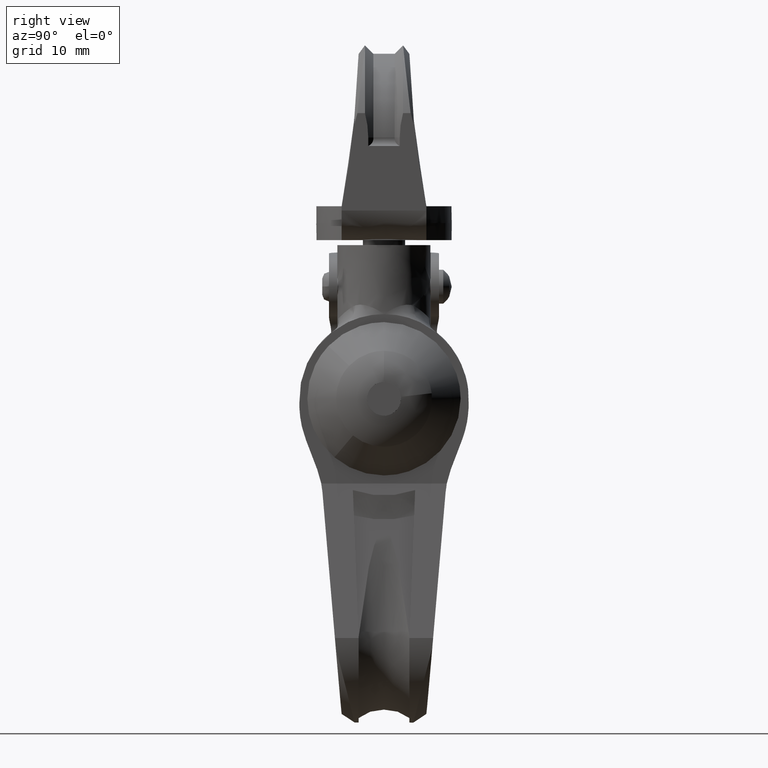
[diagram: clean part render]
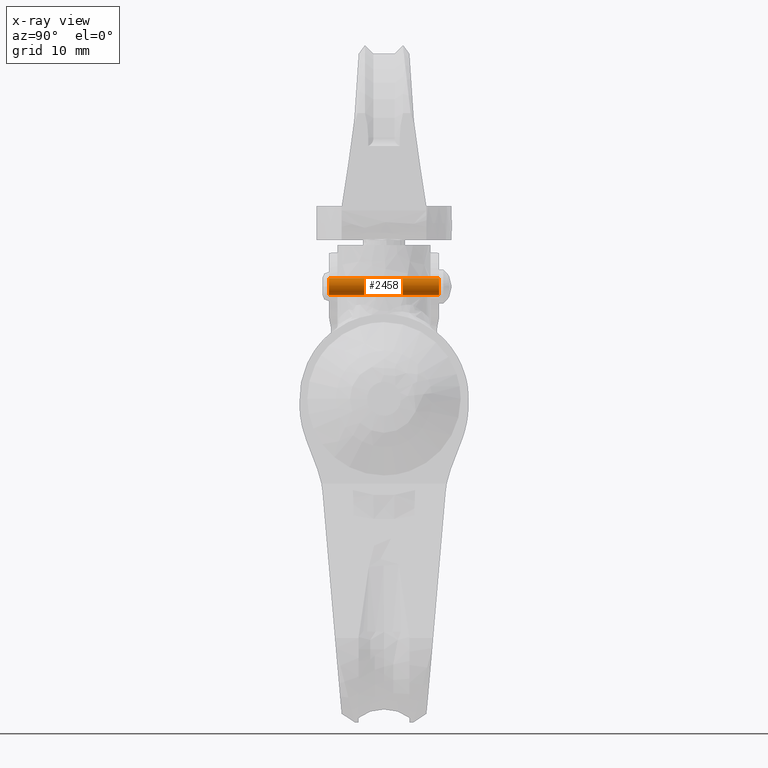
[diagram: x-ray — body ghosted, one internal face saturated and labeled with its STEP entity id]
A machine part, right view, then the same camera in x-ray: the body is ghosted and one INTERNAL B-rep face — a face not visible from any outside direction — is saturated and labeled: STEP entity #2458.
In plain terms, the highlighted face is a freeform B-spline surface patch.
Its self-contained STEP definition (entity closure, byte-faithful):
#2324=CARTESIAN_POINT('',(-0.763555642940465,-6.824999950000001,13.888250038381923));
#2325=CARTESIAN_POINT('',(-0.745074783231515,-6.824999950000001,13.910102672837185));
#2326=CARTESIAN_POINT('',(-0.725374371012287,-6.824999950000001,13.930862575693650));
#2327=CARTESIAN_POINT('',(-0.037019795318534,-6.824999950000001,14.656236946705938));
#2328=CARTESIAN_POINT('',(0.688354575693754,-6.824999950000001,13.967882371012189));
#2329=CARTESIAN_POINT('',(1.413728946706041,-6.824999950000001,13.279527795318433));
#2330=CARTESIAN_POINT('',(0.725374371012287,-6.824999950000001,12.554153424306151));
#2331=CARTESIAN_POINT('',(0.037019795318534,-6.824999950000001,11.828779053293857));
#2332=CARTESIAN_POINT('',(-0.688354575693754,-6.824999950000001,12.517133628987610));
#2333=CARTESIAN_POINT('',(-0.763555642940465,6.833122948750002,13.888250038381923));
#2334=CARTESIAN_POINT('',(-0.745074783231515,6.833122948750001,13.910102672837185));
#2335=CARTESIAN_POINT('',(-0.725374371012287,6.833122948750001,13.930862575693650));
#2336=CARTESIAN_POINT('',(-0.037019795318534,6.833122948750001,14.656236946705938));
#2337=CARTESIAN_POINT('',(0.688354575693754,6.833122948750001,13.967882371012189));
#2338=CARTESIAN_POINT('',(1.413728946706041,6.833122948750001,13.279527795318433));
#2339=CARTESIAN_POINT('',(0.725374371012287,6.833122948750001,12.554153424306151));
#2340=CARTESIAN_POINT('',(0.037019795318534,6.833122948750001,11.828779053293857));
#2341=CARTESIAN_POINT('',(-0.688354575693754,6.833122948750001,12.517133628987610));
#2349=(BOUNDED_SURFACE()B_SPLINE_SURFACE(2,1,((#2324,#2333),(#2325,#2334),(#2326,#2335),(#2327,#2336),(#2328,#2337),(#2329,#2338),(#2330,#2339),(#2331,#2340),(#2332,#2341)),.UNSPECIFIED.,.F.,.F.,.U.)B_SPLINE_SURFACE_WITH_KNOTS((3,2,2,2,3),(2,2),(1.507964473723101,1.570796326794897,3.141592653589793,4.712388980384690,6.283185307179586),(0.0,13.658122898749999),.UNSPECIFIED.)GEOMETRIC_REPRESENTATION_ITEM()RATIONAL_B_SPLINE_SURFACE(((0.977505800795127,0.977505800795127),(0.988284271247462,0.988284271247462),(1.0,1.0),(0.707106781186548,0.707106781186548),(1.0,1.0),(0.707106781186548,0.707106781186548),(1.0,1.0),(0.707106781186548,0.707106781186548),(1.0,1.0)))REPRESENTATION_ITEM('')SURFACE());
#2350=CARTESIAN_POINT('',(-0.763556139320395,6.499998000002971,13.888250222143760));
#2351=VERTEX_POINT('',#2350);
#2352=CARTESIAN_POINT('',(0.0,6.499998000000000,14.242507999999900));
#2353=VERTEX_POINT('',#2352);
#2354=CARTESIAN_POINT('',(-0.763556139320395,6.499998000002971,13.888250222143760));
#2355=CARTESIAN_POINT('',(-0.675996915639349,6.499998000002637,13.992025765554100));
#2356=CARTESIAN_POINT('',(-0.443209305893657,6.499998000001724,14.174257615822359));
#2357=CARTESIAN_POINT('',(-0.153888300479102,6.499998000000584,14.242762035998030));
#2358=CARTESIAN_POINT('',(0.0,6.499998000000000,14.242507999999900));
#2359=B_SPLINE_CURVE_WITH_KNOTS('',3,(#2354,#2355,#2356,#2357,#2358),.UNSPECIFIED.,.F.,.U.,(4,1,4),(0.000000092471565,0.407284698735326,0.868828695473206),.UNSPECIFIED.);
#2360=EDGE_CURVE('',#2351,#2353,#2359,.T.);
#2361=ORIENTED_EDGE('',*,*,#2360,.F.);
#2362=CARTESIAN_POINT('',(-0.763556137857581,-6.500000000000000,13.888250223873470));
#2363=VERTEX_POINT('',#2362);
#2364=CARTESIAN_POINT('',(-0.763556137857581,-6.500000000000000,13.888250223873470));
#2365=CARTESIAN_POINT('',(-0.763556139320395,6.499998000002971,13.888250222143760));
#2366=QUASI_UNIFORM_CURVE('',1,(#2364,#2365),.UNSPECIFIED.,.F.,.U.);
#2367=EDGE_CURVE('',#2363,#2351,#2366,.T.);
#2368=ORIENTED_EDGE('',*,*,#2367,.F.);
#2369=CARTESIAN_POINT('',(0.0,-6.500000000000000,14.242507999999900));
#2370=VERTEX_POINT('',#2369);
#2371=CARTESIAN_POINT('',(-0.763556137857581,-6.500000000000000,13.888250223873470));
#2372=CARTESIAN_POINT('',(-0.664400278883165,-6.499999999999996,14.005953019708020));
#2373=CARTESIAN_POINT('',(-0.425226780240057,-6.500000000000004,14.182551972914631));
#2374=CARTESIAN_POINT('',(-0.135782008017570,-6.499999999999999,14.242674359387101));
#2375=CARTESIAN_POINT('',(0.0,-6.500000000000000,14.242507999999900));
#2376=B_SPLINE_CURVE_WITH_KNOTS('',3,(#2371,#2372,#2373,#2374,#2375),.UNSPECIFIED.,.F.,.U.,(4,1,4),(0.000000092472238,0.461544088127851,0.868828693207663),.UNSPECIFIED.);
#2377=EDGE_CURVE('',#2363,#2370,#2376,.T.);
#2378=ORIENTED_EDGE('',*,*,#2377,.T.);
#2379=CARTESIAN_POINT('',(0.999999999997962,-6.500000000000000,13.242505981271940));
#2380=VERTEX_POINT('',#2379);
#2381=CARTESIAN_POINT('',(0.0,-6.500000000000000,14.242507999999900));
#2382=CARTESIAN_POINT('',(0.163696460211535,-6.500000000000004,14.242847218468549));
#2383=CARTESIAN_POINT('',(0.433326428088667,-6.499999999999996,14.174710938360620));
#2384=CARTESIAN_POINT('',(0.703634524694872,-6.500000000000003,13.968925489953410));
#2385=CARTESIAN_POINT('',(0.865486267723774,-6.500000000000011,13.761532254858439));
#2386=CARTESIAN_POINT('',(0.972060474738223,-6.499999999999996,13.528831545811119));
#2387=CARTESIAN_POINT('',(1.000045438169505,-6.500000000000001,13.340685776853840));
#2388=CARTESIAN_POINT('',(0.999999999997962,-6.500000000000000,13.242505981271940));
#2389=B_SPLINE_CURVE_WITH_KNOTS('',3,(#2381,#2382,#2383,#2384,#2385,#2386,#2387,#2388),.UNSPECIFIED.,.F.,.U.,(4,1,1,1,1,4),(0.000000245823623,0.490896802437103,0.809926272235195,1.006299952943718,1.276310246501432,1.570836882195954),.UNSPECIFIED.);
#2390=EDGE_CURVE('',#2370,#2380,#2389,.T.);
#2391=ORIENTED_EDGE('',*,*,#2390,.T.);
#2392=CARTESIAN_POINT('',(0.0,-6.500000000000000,12.242507999999900));
#2393=VERTEX_POINT('',#2392);
#2394=CARTESIAN_POINT('',(0.999999999997962,-6.500000000000000,13.242505981271940));
#2395=CARTESIAN_POINT('',(1.000054735909450,-6.500000000000009,13.136145751484420));
#2396=CARTESIAN_POINT('',(0.964445600507798,-6.499999999999994,12.915285021596020));
#2397=CARTESIAN_POINT('',(0.804051009810924,-6.500000000000015,12.615019833337159));
#2398=CARTESIAN_POINT('',(0.564079687397297,-6.499999999999983,12.397608282935060));
#2399=CARTESIAN_POINT('',(0.286323949201262,-6.500000000000040,12.270448770709530));
#2400=CARTESIAN_POINT('',(0.098177615662420,-6.499999999999991,12.242463012864430));
#2401=CARTESIAN_POINT('',(0.0,-6.500000000000000,12.242507999999900));
#2402=B_SPLINE_CURVE_WITH_KNOTS('',3,(#2394,#2395,#2396,#2397,#2398,#2399,#2400,#2401),.UNSPECIFIED.,.F.,.U.,(4,1,1,1,1,4),(0.000000248576374,0.319070290207142,0.662705590867078,1.006298491405287,1.276308395409540,1.570834606562275),.UNSPECIFIED.);
#2403=EDGE_CURVE('',#2380,#2393,#2402,.T.);
#2404=ORIENTED_EDGE('',*,*,#2403,.T.);
#2405=CARTESIAN_POINT('',(-0.688354394380827,-6.500000000000000,12.517134151728770));
#2406=VERTEX_POINT('',#2405);
#2407=CARTESIAN_POINT('',(0.0,-6.500000000000000,12.242507999999900));
#2408=CARTESIAN_POINT('',(-0.134462945498740,-6.500000000000015,12.242347426220990));
#2409=CARTESIAN_POINT('',(-0.387394739636763,-6.499999999999983,12.294378327154860));
#2410=CARTESIAN_POINT('',(-0.602351020487588,-6.500000000000007,12.435402590359089));
#2411=CARTESIAN_POINT('',(-0.688354394380827,-6.500000000000000,12.517134151728770));
#2412=B_SPLINE_CURVE_WITH_KNOTS('',3,(#2407,#2408,#2409,#2410,#2411),.UNSPECIFIED.,.F.,.U.,(4,1,4),(0.000000059479339,0.403325923860254,0.759236064596710),.UNSPECIFIED.);
#2413=EDGE_CURVE('',#2393,#2406,#2412,.T.);
#2414=ORIENTED_EDGE('',*,*,#2413,.T.);
#2415=CARTESIAN_POINT('',(-0.688354396394281,6.499997999997890,12.517134153639461));
#2416=VERTEX_POINT('',#2415);
#2417=CARTESIAN_POINT('',(-0.688354394380827,-6.500000000000000,12.517134151728770));
#2418=CARTESIAN_POINT('',(-0.688354396394281,6.499997999997890,12.517134153639461));
#2419=QUASI_UNIFORM_CURVE('',1,(#2417,#2418),.UNSPECIFIED.,.F.,.U.);
#2420=EDGE_CURVE('',#2406,#2416,#2419,.T.);
#2421=ORIENTED_EDGE('',*,*,#2420,.T.);
#2422=CARTESIAN_POINT('',(0.0,6.499998000000000,12.242507999999900));
#2423=VERTEX_POINT('',#2422);
#2424=CARTESIAN_POINT('',(0.0,6.499998000000000,12.242507999999900));
#2425=CARTESIAN_POINT('',(-0.118647317592325,6.499997999999632,12.242409898192721));
#2426=CARTESIAN_POINT('',(-0.371638414500506,6.499997999998868,12.288118085428000));
#2427=CARTESIAN_POINT('',(-0.590934056227237,6.499997999998183,12.424446163341580));
#2428=CARTESIAN_POINT('',(-0.688354396394281,6.499997999997890,12.517134153639461));
#2429=B_SPLINE_CURVE_WITH_KNOTS('',3,(#2424,#2425,#2426,#2427,#2428),.UNSPECIFIED.,.F.,.U.,(4,1,4),(0.000000059479236,0.355910201688268,0.759236067372647),.UNSPECIFIED.);
#2430=EDGE_CURVE('',#2423,#2416,#2429,.T.);
#2431=ORIENTED_EDGE('',*,*,#2430,.F.);
#2432=CARTESIAN_POINT('',(0.999999999997962,6.499998000000000,13.242505981271940));
#2433=VERTEX_POINT('',#2432);
#2434=CARTESIAN_POINT('',(0.999999999997962,6.499998000000000,13.242505981271940));
#2435=CARTESIAN_POINT('',(1.000054735909450,6.499998000000004,13.136145751484420));
#2436=CARTESIAN_POINT('',(0.964445600507799,6.499997999999996,12.915285021596020));
#2437=CARTESIAN_POINT('',(0.804051009810924,6.499998000000013,12.615019833337170));
#2438=CARTESIAN_POINT('',(0.564079687397297,6.499997999999978,12.397608282935060));
#2439=CARTESIAN_POINT('',(0.286323949201261,6.499998000000040,12.270448770709530));
#2440=CARTESIAN_POINT('',(0.098177615662420,6.499997999999990,12.242463012864430));
#2441=CARTESIAN_POINT('',(0.0,6.499998000000000,12.242507999999900));
#2442=B_SPLINE_CURVE_WITH_KNOTS('',3,(#2434,#2435,#2436,#2437,#2438,#2439,#2440,#2441),.UNSPECIFIED.,.F.,.U.,(4,1,1,1,1,4),(0.000000248576374,0.319070290207142,0.662705590867078,1.006298491405287,1.276308395409540,1.570834606562275),.UNSPECIFIED.);
#2443=EDGE_CURVE('',#2433,#2423,#2442,.T.);
#2444=ORIENTED_EDGE('',*,*,#2443,.F.);
#2445=CARTESIAN_POINT('',(0.0,6.499998000000000,14.242507999999900));
#2446=CARTESIAN_POINT('',(0.163696691461124,6.499998000000001,14.242847326459380));
#2447=CARTESIAN_POINT('',(0.433325790579272,6.499997999999999,14.174710484172710));
#2448=CARTESIAN_POINT('',(0.703635254757503,6.499997999999994,13.968926043232930));
#2449=CARTESIAN_POINT('',(0.865485600416646,6.499998000000010,13.761531568049520));
#2450=CARTESIAN_POINT('',(0.972060837959014,6.499997999999993,13.528832103897400));
#2451=CARTESIAN_POINT('',(1.000045361541743,6.499998000000000,13.340685579493201));
#2452=CARTESIAN_POINT('',(0.999999999997962,6.499998000000000,13.242505981271940));
#2453=B_SPLINE_CURVE_WITH_KNOTS('',3,(#2445,#2446,#2447,#2448,#2449,#2450,#2451,#2452),.UNSPECIFIED.,.F.,.U.,(4,1,1,1,1,4),(0.000000245823623,0.490896802437103,0.809926272235195,1.006299952943718,1.276310246501432,1.570836882195954),.UNSPECIFIED.);
#2454=EDGE_CURVE('',#2353,#2433,#2453,.T.);
#2455=ORIENTED_EDGE('',*,*,#2454,.F.);
#2456=EDGE_LOOP('',(#2361,#2368,#2378,#2391,#2404,#2414,#2421,#2431,#2444,#2455));
#2457=FACE_OUTER_BOUND('',#2456,.T.);
#2458=ADVANCED_FACE('',(#2457),#2349,.T.);